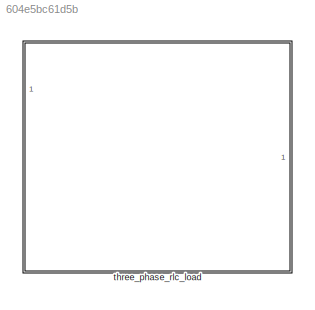
MODEL slx_604e5bc61d5b
KIND library
CONFIG AbsTol = auto
CONFIG EnableMultiTasking = off
CONFIG FixedStep = auto
CONFIG MaxStep = auto
CONFIG MinStep = auto
CONFIG RelTol = 1e-3
CONFIG SampleTimeConstraint = Unconstrained
CONFIG SolverName = VariableStepAuto
CONFIG StartTime = 0.0
CONFIG StopTime = 10.0
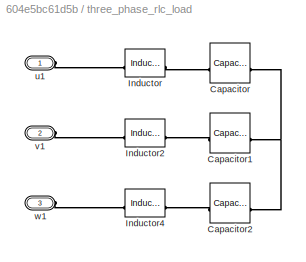
BLOCK [SubSystem] three_phase_rlc_load
BLOCK [Reference] three_phase_rlc_load/Capacitor  REF=fl_lib/Electrical/Electrical Elements/Capacitor
  SourceBlock = fl_lib/Electrical/Electrical Elements/Capacitor
  SourceType = Capacitor
BLOCK [Reference] three_phase_rlc_load/Capacitor1  REF=fl_lib/Electrical/Electrical Elements/Capacitor
  SourceBlock = fl_lib/Electrical/Electrical Elements/Capacitor
  SourceType = Capacitor
BLOCK [Reference] three_phase_rlc_load/Capacitor2  REF=fl_lib/Electrical/Electrical Elements/Capacitor
  SourceBlock = fl_lib/Electrical/Electrical Elements/Capacitor
  SourceType = Capacitor
BLOCK [Reference] three_phase_rlc_load/Inductor  REF=fl_lib/Electrical/Electrical Elements/Inductor
  SourceBlock = fl_lib/Electrical/Electrical Elements/Inductor
  SourceType = Inductor
BLOCK [Reference] three_phase_rlc_load/Inductor2  REF=fl_lib/Electrical/Electrical Elements/Inductor
  SourceBlock = fl_lib/Electrical/Electrical Elements/Inductor
  SourceType = Inductor
BLOCK [Reference] three_phase_rlc_load/Inductor4  REF=fl_lib/Electrical/Electrical Elements/Inductor
  SourceBlock = fl_lib/Electrical/Electrical Elements/Inductor
  SourceType = Inductor
BLOCK [PMIOPort] three_phase_rlc_load/u1
  Side = Left
BLOCK [PMIOPort] three_phase_rlc_load/v1
  Port = 2
  Side = Left
BLOCK [PMIOPort] three_phase_rlc_load/w1
  Port = 3
  Side = Left
PLINE three_phase_rlc_load/Capacitor1:LConn1 -- three_phase_rlc_load/Inductor2:RConn1
PNET net1: three_phase_rlc_load/Capacitor1:RConn1 -- three_phase_rlc_load/Capacitor2:RConn1 -- three_phase_rlc_load/Capacitor:RConn1
PLINE three_phase_rlc_load/Capacitor2:LConn1 -- three_phase_rlc_load/Inductor4:RConn1
PLINE three_phase_rlc_load/Capacitor:LConn1 -- three_phase_rlc_load/Inductor:RConn1
PLINE three_phase_rlc_load/Inductor2:LConn1 -- three_phase_rlc_load/v1:RConn1
PLINE three_phase_rlc_load/Inductor4:LConn1 -- three_phase_rlc_load/w1:RConn1
PLINE three_phase_rlc_load/Inductor:LConn1 -- three_phase_rlc_load/u1:RConn1
note: PNET lines group multi-terminal physical nets as a canonical sorted terminal list (undirected conserving connections); 2-terminal nets keep the pairwise PLINE form
